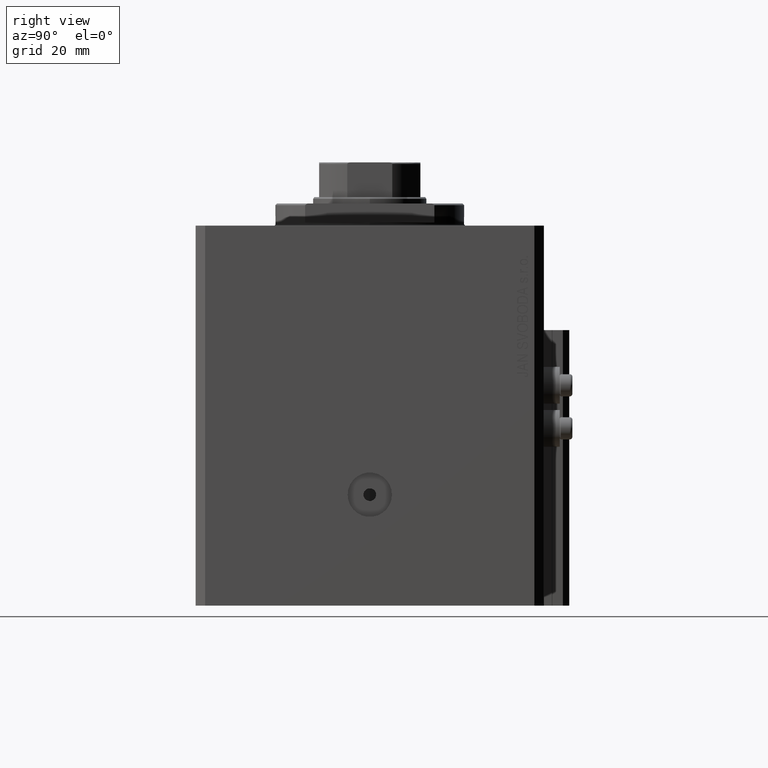
[diagram: clean part render]
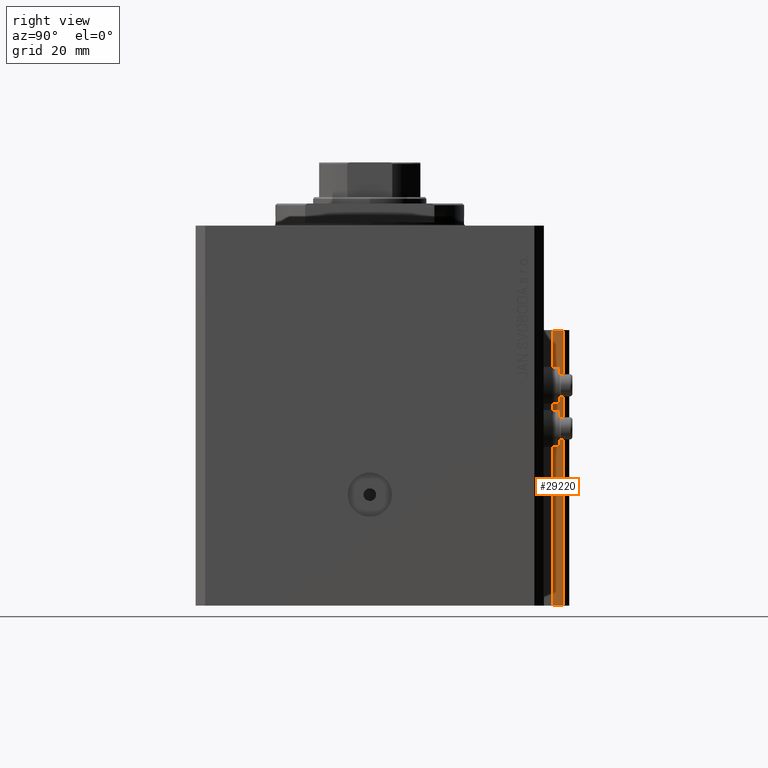
[diagram: same view with one face highlighted and labeled with its STEP entity id]
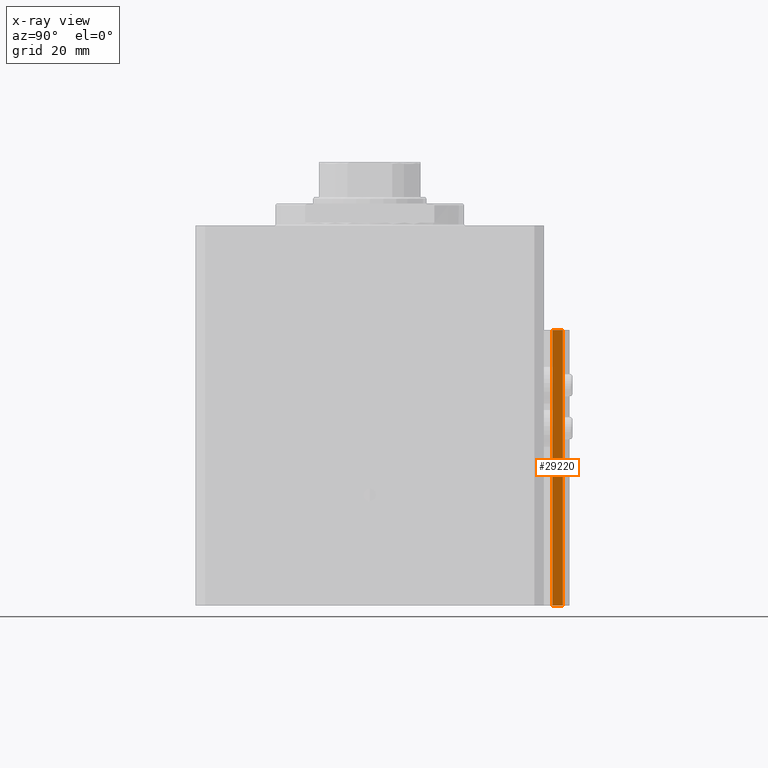
[diagram: x-ray of the same camera — body ghosted, the highlighted face saturated]
A machine part, right view. The second image highlights one B-rep face of the part: STEP entity #29220.
The next image is the same camera in x-ray: the body ghosted, the highlighted face saturated — about 0% of this face is hidden behind the body in this view.
In plain terms, the highlighted planar face has unit normal (1, 0, 0).
Its self-contained STEP definition (entity closure, byte-faithful):
#3080 = EDGE_CURVE ( 'NONE', #4877, #46923, #47178, .T. ) ;
#4392 = CARTESIAN_POINT ( 'NONE',  ( 11.99999999999999822, 57.70000000000003126, -120.0000000000000000 ) ) ;
#4877 = VERTEX_POINT ( 'NONE', #4392 ) ;
#5306 = VECTOR ( 'NONE', #44702, 1000.000000000000000 ) ;
#8356 = DIRECTION ( 'NONE',  ( -5.256737805990328981E-16, 1.000000000000000000, 0.000000000000000000 ) ) ;
#8488 = VERTEX_POINT ( 'NONE', #12750 ) ;
#12750 = CARTESIAN_POINT ( 'NONE',  ( 12.00000000000000000, 61.00000000000002842, -33.00000000000000000 ) ) ;
#13890 = DIRECTION ( 'NONE',  ( 1.000000000000000000, 5.256737805990328981E-16, -0.000000000000000000 ) ) ;
#14131 = FACE_OUTER_BOUND ( 'NONE', #16824, .T. ) ;
#16824 = EDGE_LOOP ( 'NONE', ( #19759, #30183, #20724, #29135 ) ) ;
#17005 = DIRECTION ( 'NONE',  ( -5.256737805990328981E-16, 1.000000000000000000, 0.000000000000000000 ) ) ;
#17239 = CARTESIAN_POINT ( 'NONE',  ( 12.00000000000000178, 57.70000000000003126, -120.0000000000000000 ) ) ;
#19395 = LINE ( 'NONE', #30139, #5306 ) ;
#19759 = ORIENTED_EDGE ( 'NONE', *, *, #42748, .F. ) ;
#20724 = ORIENTED_EDGE ( 'NONE', *, *, #33587, .T. ) ;
#21412 = CARTESIAN_POINT ( 'NONE',  ( 11.99999999999999822, 57.70000000000003126, -120.0000000000000000 ) ) ;
#24977 = DIRECTION ( 'NONE',  ( 0.000000000000000000, 0.000000000000000000, 1.000000000000000000 ) ) ;
#26631 = LINE ( 'NONE', #40732, #34545 ) ;
#28584 = VECTOR ( 'NONE', #24977, 1000.000000000000000 ) ;
#28670 = EDGE_CURVE ( 'NONE', #30270, #8488, #26631, .T. ) ;
#29135 = ORIENTED_EDGE ( 'NONE', *, *, #28670, .T. ) ;
#29220 = ADVANCED_FACE ( 'NONE', ( #14131 ), #32506, .T. ) ;
#29858 = CARTESIAN_POINT ( 'NONE',  ( 12.00000000000000178, 57.70000000000003126, -33.00000000000000000 ) ) ;
#30139 = CARTESIAN_POINT ( 'NONE',  ( 12.00000000000000178, 57.70000000000003126, -120.0000000000000000 ) ) ;
#30183 = ORIENTED_EDGE ( 'NONE', *, *, #3080, .F. ) ;
#30270 = VERTEX_POINT ( 'NONE', #38753 ) ;
#31927 = CARTESIAN_POINT ( 'NONE',  ( 11.99999999999999822, 57.70000000000003126, -33.00000000000000000 ) ) ;
#32506 = PLANE ( 'NONE',  #35304 ) ;
#33587 = EDGE_CURVE ( 'NONE', #4877, #30270, #19395, .T. ) ;
#34545 = VECTOR ( 'NONE', #36910, 1000.000000000000000 ) ;
#35248 = VECTOR ( 'NONE', #8356, 1000.000000000000000 ) ;
#35304 = AXIS2_PLACEMENT_3D ( 'NONE', #17239, #13890, #17005 ) ;
#36910 = DIRECTION ( 'NONE',  ( 0.000000000000000000, 0.000000000000000000, 1.000000000000000000 ) ) ;
#38753 = CARTESIAN_POINT ( 'NONE',  ( 12.00000000000000000, 61.00000000000002842, -120.0000000000000000 ) ) ;
#40732 = CARTESIAN_POINT ( 'NONE',  ( 12.00000000000000000, 61.00000000000002842, -120.0000000000000000 ) ) ;
#42748 = EDGE_CURVE ( 'NONE', #46923, #8488, #45362, .T. ) ;
#44702 = DIRECTION ( 'NONE',  ( -5.256737805990328981E-16, 1.000000000000000000, 0.000000000000000000 ) ) ;
#45362 = LINE ( 'NONE', #29858, #35248 ) ;
#46923 = VERTEX_POINT ( 'NONE', #31927 ) ;
#47178 = LINE ( 'NONE', #21412, #28584 ) ;